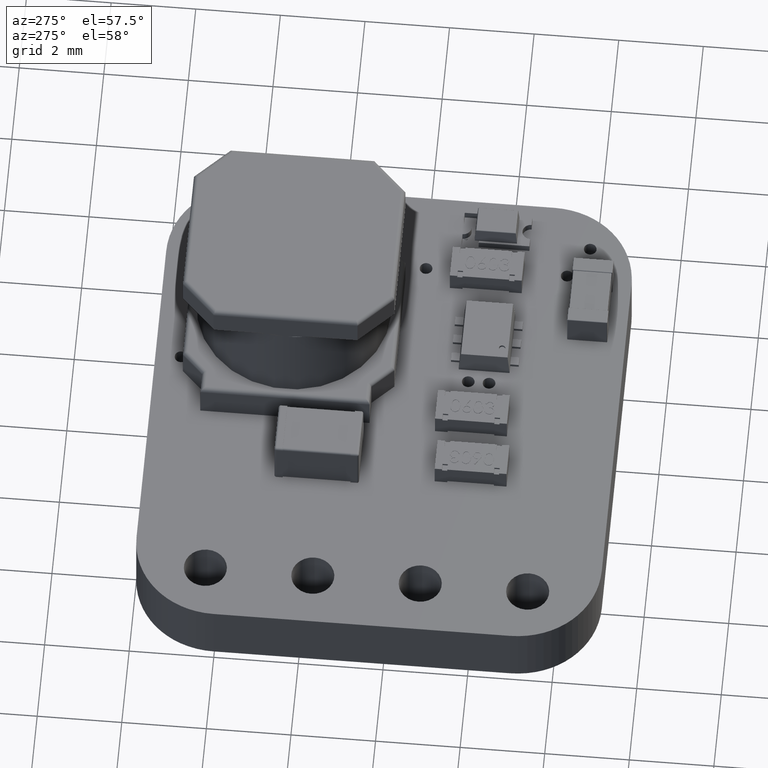
[diagram: clean part render]
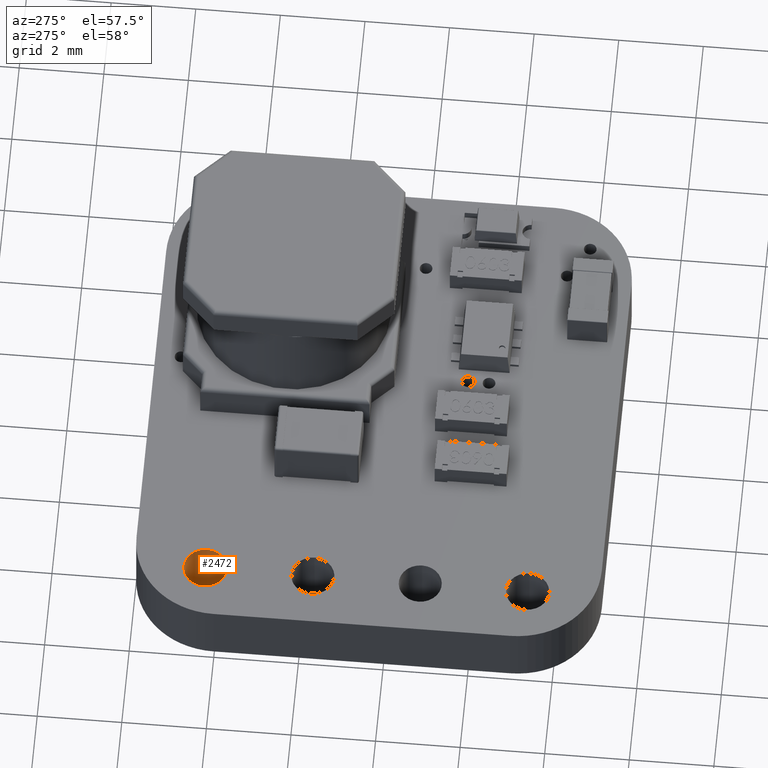
[diagram: same view with one face highlighted and labeled with its STEP entity id]
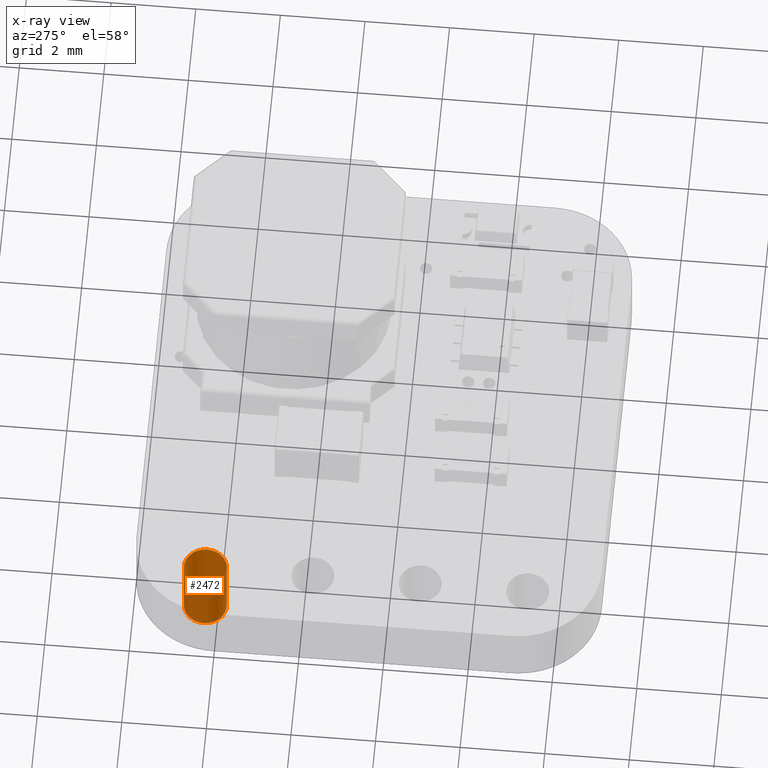
[diagram: x-ray of the same camera — body ghosted, the highlighted face saturated]
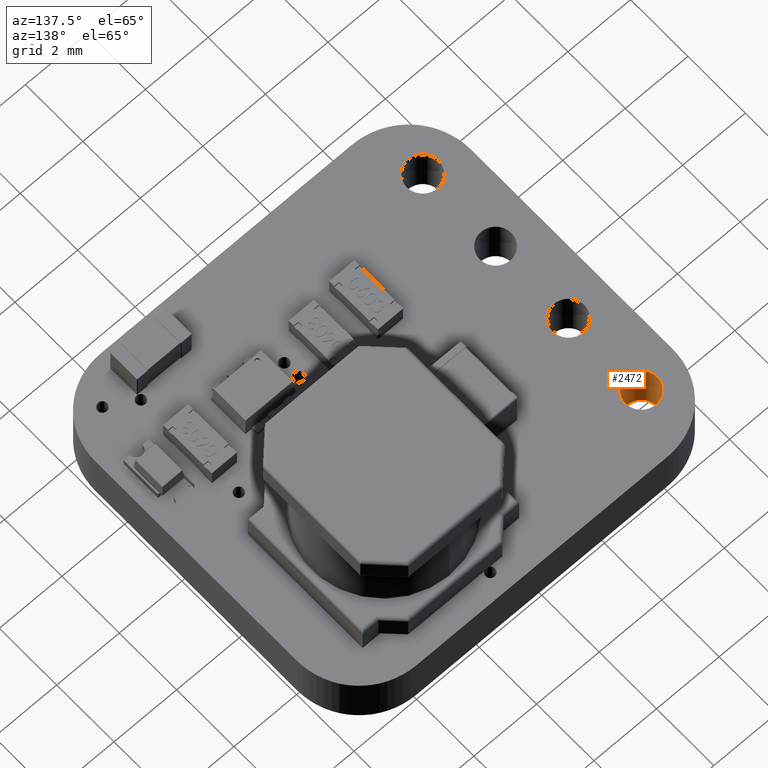
[diagram: same view with one face highlighted and labeled with its STEP entity id]
A machine part, auxiliary view. The second image highlights one B-rep face of the part: STEP entity #2472.
The next image is the same camera in x-ray: the body ghosted, the highlighted face saturated — about 0% of this face is hidden behind the body in this view.
A second angle (auxiliary view) of the same face is appended — the face is thin or edge-on in the first view.
In plain terms, the highlighted cylindrical surface (bore or boss wall) has radius 0.508 mm, axis along (-0, -0, -1).
Its self-contained STEP definition (entity closure, byte-faithful):
#2472 = ADVANCED_FACE('',(#2473),#2500,.F.);
#2473 = FACE_BOUND('',#2474,.T.);
#2474 = EDGE_LOOP('',(#2475,#2485,#2492,#2493));
#2475 = ORIENTED_EDGE('',*,*,#2476,.T.);
#2476 = EDGE_CURVE('',#2477,#2479,#2481,.T.);
#2477 = VERTEX_POINT('',#2478);
#2478 = CARTESIAN_POINT('',(1.778,-1.69,-0.82));
#2479 = VERTEX_POINT('',#2480);
#2480 = CARTESIAN_POINT('',(1.778,-1.69,0.82));
#2481 = LINE('',#2482,#2483);
#2482 = CARTESIAN_POINT('',(1.778,-1.69,-0.82));
#2483 = VECTOR('',#2484,1.);
#2484 = DIRECTION('',(0.,0.,1.));
#2485 = ORIENTED_EDGE('',*,*,#2486,.T.);
#2486 = EDGE_CURVE('',#2479,#2479,#2487,.T.);
#2487 = CIRCLE('',#2488,0.508);
#2488 = AXIS2_PLACEMENT_3D('',#2489,#2490,#2491);
#2489 = CARTESIAN_POINT('',(1.27,-1.69,0.82));
#2490 = DIRECTION('',(0.,0.,1.));
#2491 = DIRECTION('',(1.,0.,-0.));
#2492 = ORIENTED_EDGE('',*,*,#2476,.F.);
#2493 = ORIENTED_EDGE('',*,*,#2494,.F.);
#2494 = EDGE_CURVE('',#2477,#2477,#2495,.T.);
#2495 = CIRCLE('',#2496,0.508);
#2496 = AXIS2_PLACEMENT_3D('',#2497,#2498,#2499);
#2497 = CARTESIAN_POINT('',(1.27,-1.69,-0.82));
#2498 = DIRECTION('',(0.,0.,1.));
#2499 = DIRECTION('',(1.,0.,-0.));
#2500 = CYLINDRICAL_SURFACE('',#2501,0.508);
#2501 = AXIS2_PLACEMENT_3D('',#2502,#2503,#2504);
#2502 = CARTESIAN_POINT('',(1.27,-1.69,-0.82));
#2503 = DIRECTION('',(-0.,-0.,-1.));
#2504 = DIRECTION('',(1.,0.,-0.));